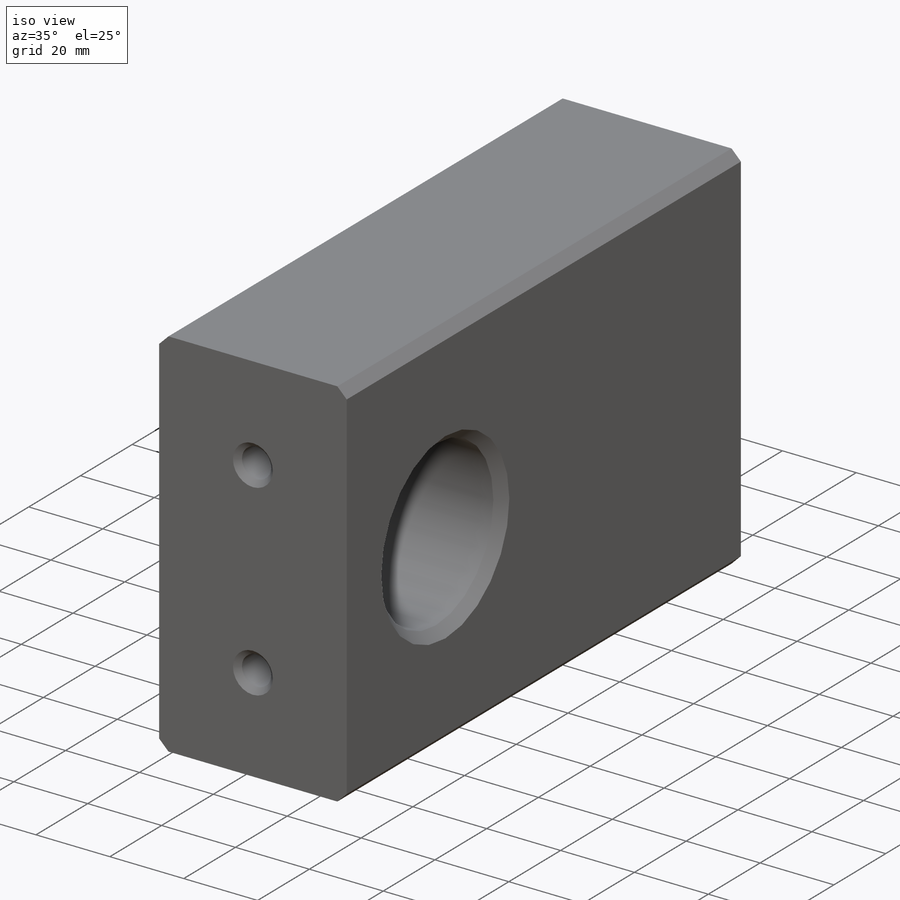
[diagram: iso view]
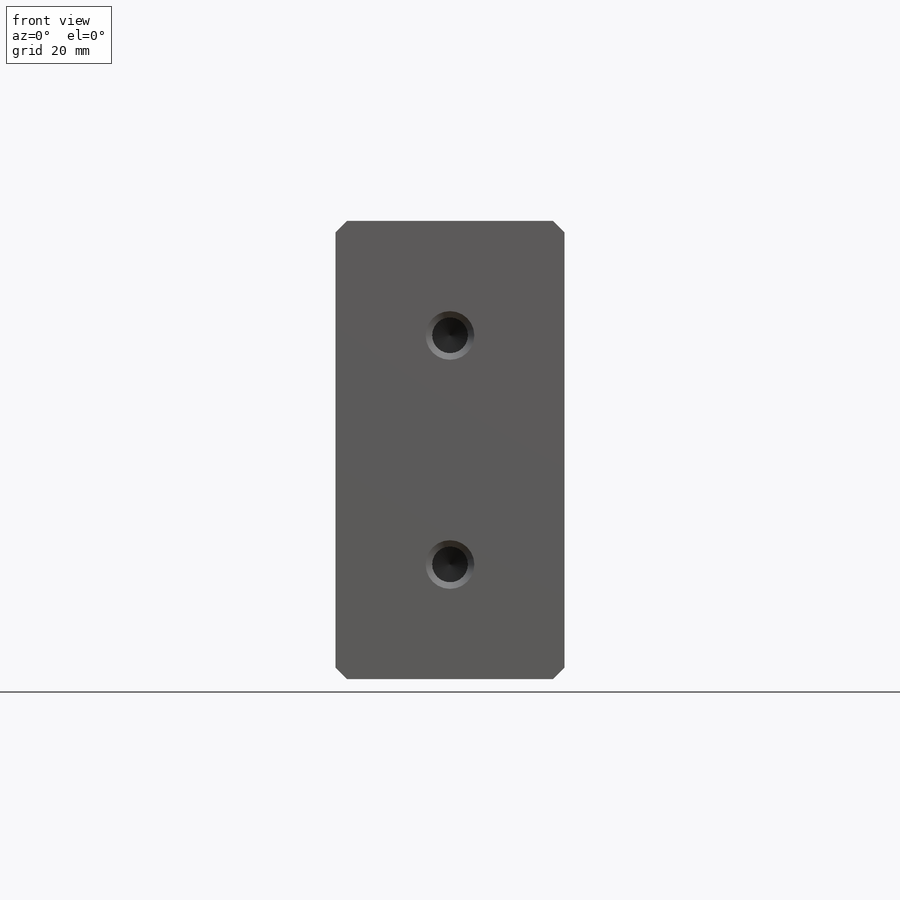
[diagram: front view]
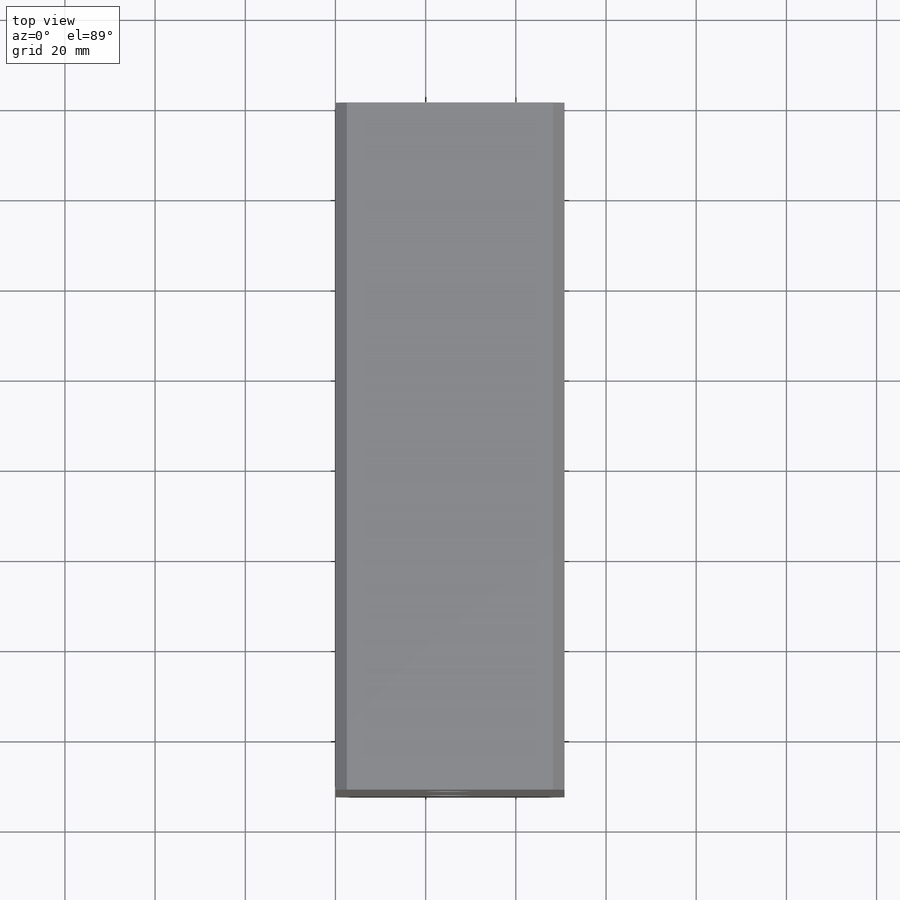
[diagram: top view]
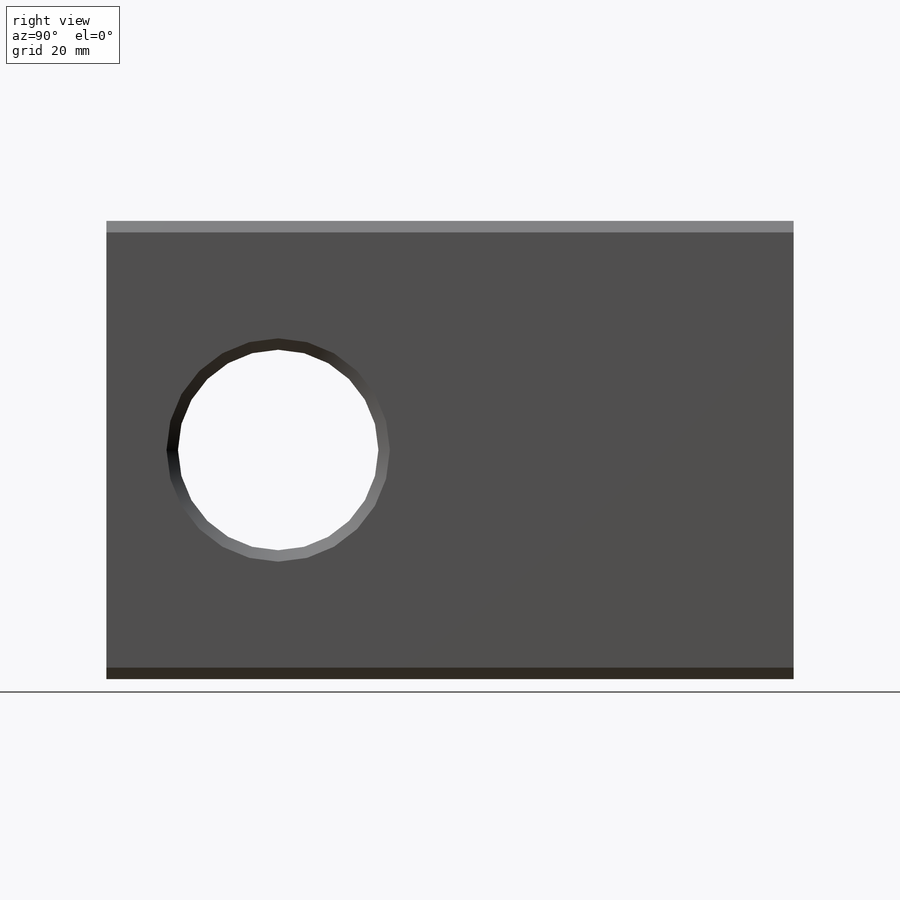
[diagram: right view]
SOLIDWORKS PART (.sldprt)
format: sldprt  version: not decoded by parser v0  size: 279,040 bytes
history: native  units: mm
features: sketch x4, thread x2, material x1, extrude x1, cut_extrude x1, chamfer x1, hole x1, plane x1, mirror x1 + 1 further entry (+13 scaffold rows collapsed)
feature tree (27):
  scaffold x13  (default folders/planes/origin — collapsed)
  material  "6061 Alloy"
  "Origin"  ID=-1
  sketch  "Sketch1"  dims[c1.D1=25.4mm c1.D2=76.2mm c1.D3=127.0mm c2.D1=101.6mm c2.D2=50.8mm]
  extrude  "Extrude1"  Depth=152.4mm
  sketch  "Sketch2"  dims[c1.D1=44.45mm c1.D3=44.45mm c2.D1=44.45mm c2.D3=~43.839493mm c2.D2=38.1mm c3.D3=38.1mm c3.D2=38.1mm c4.D3=38.1mm c4.D2=38.1mm c5.D3=38.1mm]
  cut_extrude  "Extrude2"  [1 undecoded]
  chamfer  "Chamfer1"  Distance=2.54mm Angle=45deg
  hole  "3/8-16 Tapped Hole1"  [1 undecoded]
  sketch  "Sketch4"  dims[c1.D1=50.8mm c1.D2=12.7mm c1.D3=12.7mm c2.D2=25.4mm c2.D3=25.4mm]
  thread  "Hole Thread1"  Diameter=19.05mm  [1 undecoded]
  thread  "Hole Thread2"  Diameter=19.05mm  [1 undecoded]
  sketch  "Sketch3"  dims[hole-wizard template sketch: 39 standard entries collapsed; hole parameters kept: c13.Tap Drill Dia.=7.9375mm c13.Tap Drill Depth=23.876mm c13.Near C'Sink Dia.=10.795mm c13.D4=~33.297463mm c13.Near C'Sink Angle=90.0deg c14.D5=~14.816244mm c14.Drill Angle=118.0deg]
  plane  "Plane1"  Offset=76.2mm
  mirror  "Mirror1"
decode coverage: 8 of 11 modeling features carry decoded parameters; 1 rows unclassified (native names shown)
note: ~ marks probable driven/reference dimensions
note: 4 parameter values undecoded
note: suppression state not decoded; provenance and decode notes live in map.json
